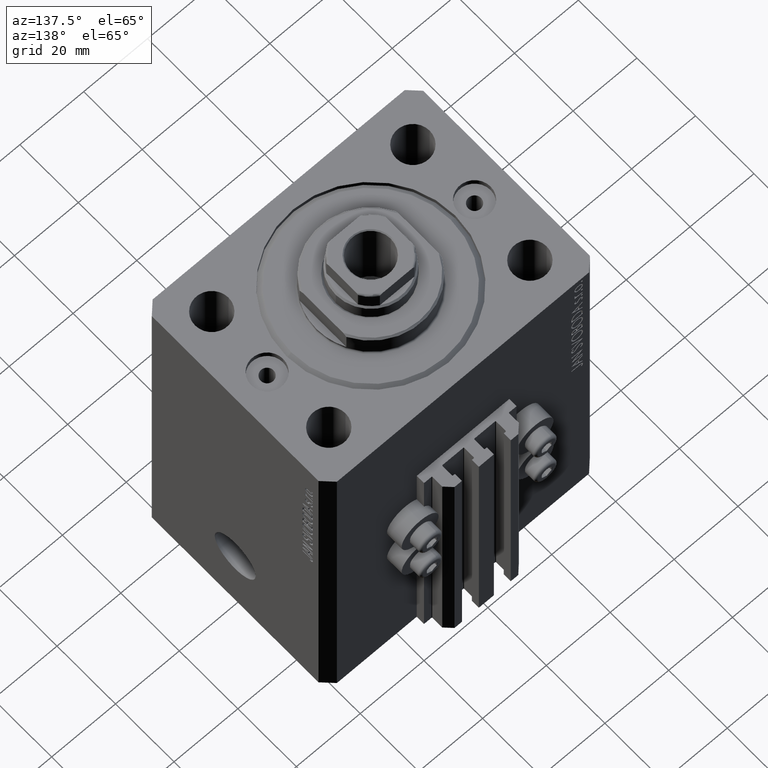
[diagram: clean part render]
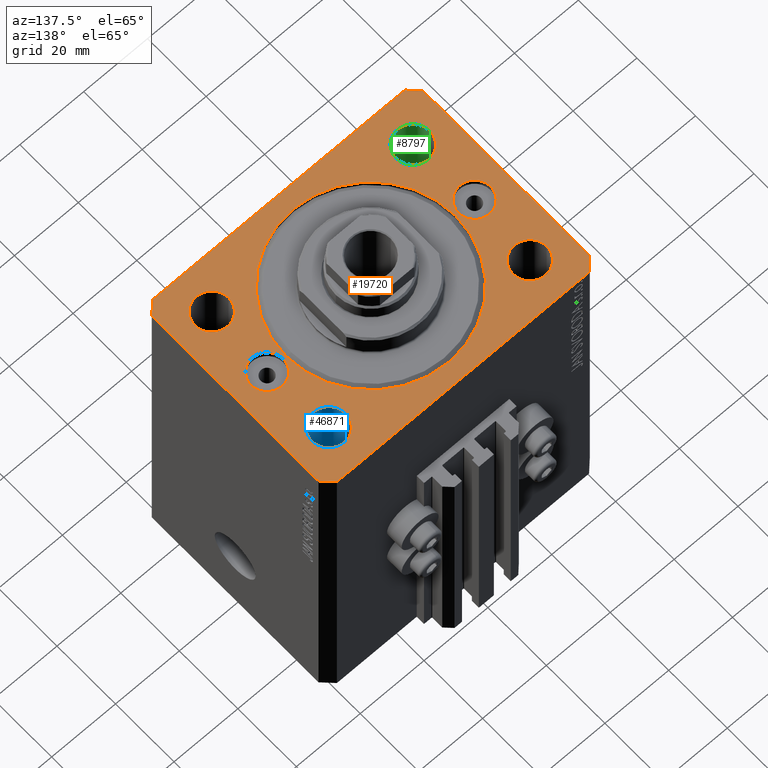
[diagram: same view with three faces highlighted in distinct colors, each labeled with its STEP entity id]
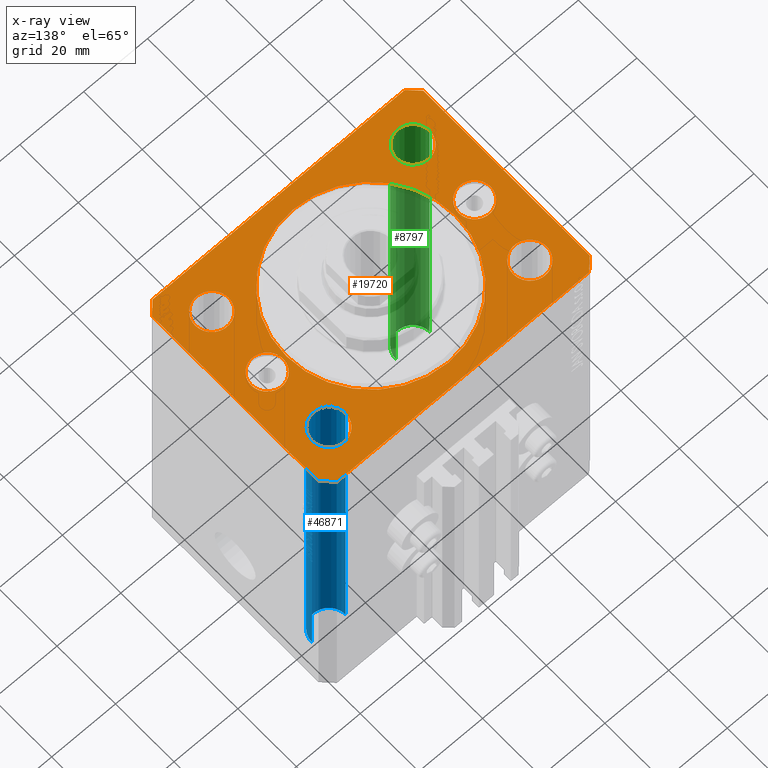
[diagram: x-ray of the same camera — body ghosted, the three highlighted faces saturated]
A machine part, auxiliary view with three faces highlighted in distinct colors.
The next image is the same camera in x-ray (body ghosted, the three faces saturated) — at least one of them is partly hidden behind the body in this view.
Their STEP definitions:

[orange] entity #19720 — the highlighted planar face has unit normal (0, 0, 1).
#109 = DIRECTION ( 'NONE',  ( 1.000000000000000000, 0.000000000000000000, 0.000000000000000000 ) ) ;
#276 = AXIS2_PLACEMENT_3D ( 'NONE', #23232, #34217, #15344 ) ;
#693 = EDGE_CURVE ( 'NONE', #46442, #35018, #13587, .T. ) ;
#1014 = DIRECTION ( 'NONE',  ( -0.7071067811865356934, 0.7071067811865594521, 0.000000000000000000 ) ) ;
#1094 = FACE_BOUND ( 'NONE', #40744, .T. ) ;
#1325 = VERTEX_POINT ( 'NONE', #14416 ) ;
#1374 = DIRECTION ( 'NONE',  ( 1.000000000000000000, 0.000000000000000000, 0.000000000000000000 ) ) ;
#1429 = CARTESIAN_POINT ( 'NONE',  ( -39.50000000000000711, -31.50000000000000000, 0.000000000000000000 ) ) ;
#1502 = ORIENTED_EDGE ( 'NONE', *, *, #40496, .T. ) ;
#1551 = FACE_OUTER_BOUND ( 'NONE', #41344, .T. ) ;
#1627 = VERTEX_POINT ( 'NONE', #17248 ) ;
#2237 = CARTESIAN_POINT ( 'NONE',  ( -31.49999999999999289, -20.00000000000000355, 0.000000000000000000 ) ) ;
#2597 = CARTESIAN_POINT ( 'NONE',  ( 36.74999999999999289, -20.00000000000000355, 0.000000000000000000 ) ) ;
#3359 = VECTOR ( 'NONE', #31037, 1000.000000000000000 ) ;
#3624 = CARTESIAN_POINT ( 'NONE',  ( -42.50000000000000000, -28.50000000000000000, 0.000000000000000000 ) ) ;
#3695 = VERTEX_POINT ( 'NONE', #19771 ) ;
#3826 = DIRECTION ( 'NONE',  ( 0.000000000000000000, 0.000000000000000000, 1.000000000000000000 ) ) ;
#4094 = CIRCLE ( 'NONE', #276, 5.249999999999997335 ) ;
#4314 = ORIENTED_EDGE ( 'NONE', *, *, #14293, .F. ) ;
#4451 = DIRECTION ( 'NONE',  ( 0.000000000000000000, 0.000000000000000000, 1.000000000000000000 ) ) ;
#5074 = CARTESIAN_POINT ( 'NONE',  ( 26.25000000000000355, 19.99999999999999289, 0.000000000000000000 ) ) ;
#5400 = VECTOR ( 'NONE', #46542, 1000.000000000000000 ) ;
#5422 = CARTESIAN_POINT ( 'NONE',  ( -36.75000000000000000, 19.99999999999999645, 0.000000000000000000 ) ) ;
#5449 = DIRECTION ( 'NONE',  ( 1.000000000000000000, 0.000000000000000000, 0.000000000000000000 ) ) ;
#5566 = ORIENTED_EDGE ( 'NONE', *, *, #20287, .T. ) ;
#6174 = VERTEX_POINT ( 'NONE', #2597 ) ;
#6617 = AXIS2_PLACEMENT_3D ( 'NONE', #43726, #10988, #25582 ) ;
#6925 = AXIS2_PLACEMENT_3D ( 'NONE', #34598, #15967, #5449 ) ;
#6988 = DIRECTION ( 'NONE',  ( 0.000000000000000000, -1.000000000000000000, 0.000000000000000000 ) ) ;
#8249 = DIRECTION ( 'NONE',  ( -0.7071067811865471286, -0.7071067811865479058, 0.000000000000000000 ) ) ;
#8615 = DIRECTION ( 'NONE',  ( 1.000000000000000000, 0.000000000000000000, 0.000000000000000000 ) ) ;
#8707 = DIRECTION ( 'NONE',  ( 1.000000000000000000, 0.000000000000000000, 0.000000000000000000 ) ) ;
#8794 = DIRECTION ( 'NONE',  ( 1.000000000000000000, 0.000000000000000000, 0.000000000000000000 ) ) ;
#9576 = CIRCLE ( 'NONE', #17980, 5.250000000000000888 ) ;
#9760 = EDGE_CURVE ( 'NONE', #1627, #30281, #19648, .T. ) ;
#9792 = EDGE_CURVE ( 'NONE', #6174, #28583, #4094, .T. ) ;
#10448 = VERTEX_POINT ( 'NONE', #5422 ) ;
#10507 = AXIS2_PLACEMENT_3D ( 'NONE', #41124, #27270, #37778 ) ;
#10755 = EDGE_LOOP ( 'NONE', ( #38485, #39964 ) ) ;
#10787 = CARTESIAN_POINT ( 'NONE',  ( -42.50000000000000000, 28.50000000000000000, 0.000000000000000000 ) ) ;
#10988 = DIRECTION ( 'NONE',  ( 0.000000000000000000, 0.000000000000000000, 1.000000000000000000 ) ) ;
#11076 = DIRECTION ( 'NONE',  ( 0.000000000000000000, 0.000000000000000000, 1.000000000000000000 ) ) ;
#11808 = VECTOR ( 'NONE', #40014, 1000.000000000000000 ) ;
#12481 = DIRECTION ( 'NONE',  ( 0.000000000000000000, 0.000000000000000000, 1.000000000000000000 ) ) ;
#12498 = EDGE_CURVE ( 'NONE', #16978, #21222, #46084, .T. ) ;
#12582 = CARTESIAN_POINT ( 'NONE',  ( 36.75000000000000000, 19.99999999999999289, 0.000000000000000000 ) ) ;
#13405 = ORIENTED_EDGE ( 'NONE', *, *, #17161, .F. ) ;
#13447 = VERTEX_POINT ( 'NONE', #17687 ) ;
#13457 = VERTEX_POINT ( 'NONE', #32724 ) ;
#13587 = CIRCLE ( 'NONE', #10507, 5.000000000000000888 ) ;
#13686 = EDGE_CURVE ( 'NONE', #29611, #40072, #44318, .T. ) ;
#13810 = CARTESIAN_POINT ( 'NONE',  ( -31.49999999999999289, -20.00000000000000355, 0.000000000000000000 ) ) ;
#14293 = EDGE_CURVE ( 'NONE', #23340, #13457, #9576, .T. ) ;
#14416 = CARTESIAN_POINT ( 'NONE',  ( 42.50000000000000711, -28.50000000000000355, 0.000000000000000000 ) ) ;
#14519 = CARTESIAN_POINT ( 'NONE',  ( 26.24999999999999645, -20.00000000000000355, 0.000000000000000000 ) ) ;
#14618 = ORIENTED_EDGE ( 'NONE', *, *, #45655, .F. ) ;
#14765 = CARTESIAN_POINT ( 'NONE',  ( -26.24999999999999289, -20.00000000000000355, 0.000000000000000000 ) ) ;
#15193 = FACE_BOUND ( 'NONE', #44868, .T. ) ;
#15344 = DIRECTION ( 'NONE',  ( 1.000000000000000000, 0.000000000000000000, 0.000000000000000000 ) ) ;
#15660 = FACE_BOUND ( 'NONE', #10755, .T. ) ;
#15967 = DIRECTION ( 'NONE',  ( 0.000000000000000000, 0.000000000000000000, 1.000000000000000000 ) ) ;
#16356 = ORIENTED_EDGE ( 'NONE', *, *, #43128, .T. ) ;
#16865 = AXIS2_PLACEMENT_3D ( 'NONE', #18500, #11076, #44048 ) ;
#16978 = VERTEX_POINT ( 'NONE', #42303 ) ;
#17161 = EDGE_CURVE ( 'NONE', #35018, #46442, #35603, .T. ) ;
#17248 = CARTESIAN_POINT ( 'NONE',  ( 42.50000000000051870, 28.49999999999995381, 0.000000000000000000 ) ) ;
#17308 = ORIENTED_EDGE ( 'NONE', *, *, #32853, .T. ) ;
#17468 = ORIENTED_EDGE ( 'NONE', *, *, #693, .F. ) ;
#17679 = ORIENTED_EDGE ( 'NONE', *, *, #44807, .T. ) ;
#17687 = CARTESIAN_POINT ( 'NONE',  ( 39.50000000000000711, -31.50000000000000000, 0.000000000000000000 ) ) ;
#17980 = AXIS2_PLACEMENT_3D ( 'NONE', #13810, #21692, #46744 ) ;
#18198 = LINE ( 'NONE', #3624, #28566 ) ;
#18385 = AXIS2_PLACEMENT_3D ( 'NONE', #40675, #32827, #109 ) ;
#18407 = DIRECTION ( 'NONE',  ( 1.000000000000000000, 0.000000000000000000, 0.000000000000000000 ) ) ;
#18500 = CARTESIAN_POINT ( 'NONE',  ( 31.50000000000000000, 19.99999999999999289, 0.000000000000000000 ) ) ;
#18572 = LINE ( 'NONE', #25034, #22265 ) ;
#18692 = CARTESIAN_POINT ( 'NONE',  ( 27.50000000000000355, 6.123233995736762338E-16, 0.000000000000000000 ) ) ;
#19029 = DIRECTION ( 'NONE',  ( 1.000000000000000000, 0.000000000000000000, -0.000000000000000000 ) ) ;
#19195 = DIRECTION ( 'NONE',  ( 1.000000000000000000, 0.000000000000000000, 0.000000000000000000 ) ) ;
#19648 = LINE ( 'NONE', #41356, #22398 ) ;
#19675 = AXIS2_PLACEMENT_3D ( 'NONE', #37857, #4451, #19029 ) ;
#19720 = ADVANCED_FACE ( 'NONE', ( #1551, #1094, #45259, #23535, #38090, #15660, #15193, #29778 ), #37170, .T. ) ;
#19771 = CARTESIAN_POINT ( 'NONE',  ( 26.50000000000000355, 0.000000000000000000, 0.000000000000000000 ) ) ;
#19969 = EDGE_LOOP ( 'NONE', ( #4314, #23165 ) ) ;
#20160 = VERTEX_POINT ( 'NONE', #43758 ) ;
#20287 = EDGE_CURVE ( 'NONE', #21919, #45371, #32539, .T. ) ;
#21222 = VERTEX_POINT ( 'NONE', #18692 ) ;
#21692 = DIRECTION ( 'NONE',  ( 0.000000000000000000, 0.000000000000000000, 1.000000000000000000 ) ) ;
#21750 = AXIS2_PLACEMENT_3D ( 'NONE', #2237, #34509, #8707 ) ;
#21879 = DIRECTION ( 'NONE',  ( 1.000000000000000000, 0.000000000000000000, 0.000000000000000000 ) ) ;
#21914 = CARTESIAN_POINT ( 'NONE',  ( -37.50000000000000000, 6.123233995736768255E-16, 0.000000000000000000 ) ) ;
#21919 = VERTEX_POINT ( 'NONE', #34196 ) ;
#22265 = VECTOR ( 'NONE', #32672, 1000.000000000000000 ) ;
#22352 = LINE ( 'NONE', #29517, #43463 ) ;
#22398 = VECTOR ( 'NONE', #1014, 1000.000000000000114 ) ;
#22574 = CARTESIAN_POINT ( 'NONE',  ( 31.49999999999999289, -20.00000000000000355, 0.000000000000000000 ) ) ;
#23165 = ORIENTED_EDGE ( 'NONE', *, *, #43212, .F. ) ;
#23232 = CARTESIAN_POINT ( 'NONE',  ( 31.49999999999999289, -20.00000000000000355, 0.000000000000000000 ) ) ;
#23340 = VERTEX_POINT ( 'NONE', #14765 ) ;
#23535 = FACE_BOUND ( 'NONE', #28072, .T. ) ;
#23586 = DIRECTION ( 'NONE',  ( 0.000000000000000000, 0.000000000000000000, 1.000000000000000000 ) ) ;
#23670 = ORIENTED_EDGE ( 'NONE', *, *, #42275, .F. ) ;
#23823 = CARTESIAN_POINT ( 'NONE',  ( 39.50000000000056843, 31.50000000000000000, 0.000000000000000000 ) ) ;
#23848 = ORIENTED_EDGE ( 'NONE', *, *, #13686, .F. ) ;
#24817 = ORIENTED_EDGE ( 'NONE', *, *, #30583, .T. ) ;
#25034 = CARTESIAN_POINT ( 'NONE',  ( 42.50000000000000711, -28.50000000000000355, 0.000000000000000000 ) ) ;
#25560 = ORIENTED_EDGE ( 'NONE', *, *, #34271, .T. ) ;
#25582 = DIRECTION ( 'NONE',  ( 1.000000000000000000, 0.000000000000000000, 0.000000000000000000 ) ) ;
#25737 = ORIENTED_EDGE ( 'NONE', *, *, #33240, .F. ) ;
#25837 = DIRECTION ( 'NONE',  ( 0.7071067811865471286, -0.7071067811865479058, 0.000000000000000000 ) ) ;
#27189 = DIRECTION ( 'NONE',  ( 0.000000000000000000, 0.000000000000000000, 1.000000000000000000 ) ) ;
#27270 = DIRECTION ( 'NONE',  ( 0.000000000000000000, 0.000000000000000000, 1.000000000000000000 ) ) ;
#27503 = CIRCLE ( 'NONE', #43498, 26.50000000000000355 ) ;
#27732 = CIRCLE ( 'NONE', #21750, 5.250000000000000888 ) ;
#27824 = EDGE_LOOP ( 'NONE', ( #23848, #28060 ) ) ;
#28060 = ORIENTED_EDGE ( 'NONE', *, *, #32820, .F. ) ;
#28072 = EDGE_LOOP ( 'NONE', ( #37934, #23670 ) ) ;
#28566 = VECTOR ( 'NONE', #25837, 1000.000000000000000 ) ;
#28583 = VERTEX_POINT ( 'NONE', #14519 ) ;
#28589 = CARTESIAN_POINT ( 'NONE',  ( 39.50000000000056843, 31.50000000000000000, 0.000000000000000000 ) ) ;
#29517 = CARTESIAN_POINT ( 'NONE',  ( -39.50000000000000711, 31.50000000000000000, 0.000000000000000000 ) ) ;
#29611 = VERTEX_POINT ( 'NONE', #12582 ) ;
#29778 = FACE_BOUND ( 'NONE', #37409, .T. ) ;
#30281 = VERTEX_POINT ( 'NONE', #23823 ) ;
#30583 = EDGE_CURVE ( 'NONE', #31028, #21919, #22352, .T. ) ;
#30726 = CARTESIAN_POINT ( 'NONE',  ( -27.50000000000000000, 0.000000000000000000, 0.000000000000000000 ) ) ;
#30817 = CARTESIAN_POINT ( 'NONE',  ( 32.50000000000000000, 0.000000000000000000, 0.000000000000000000 ) ) ;
#30983 = CARTESIAN_POINT ( 'NONE',  ( 0.000000000000000000, 0.000000000000000000, 0.000000000000000000 ) ) ;
#31028 = VERTEX_POINT ( 'NONE', #34926 ) ;
#31037 = DIRECTION ( 'NONE',  ( 1.000000000000000000, 0.000000000000000000, 0.000000000000000000 ) ) ;
#31556 = EDGE_CURVE ( 'NONE', #3695, #32267, #27503, .T. ) ;
#31749 = CIRCLE ( 'NONE', #43160, 5.250000000000000888 ) ;
#32163 = EDGE_CURVE ( 'NONE', #13447, #1325, #35819, .T. ) ;
#32267 = VERTEX_POINT ( 'NONE', #33652 ) ;
#32539 = LINE ( 'NONE', #10787, #40994 ) ;
#32672 = DIRECTION ( 'NONE',  ( 8.886653596232072440E-15, 1.000000000000000000, 0.000000000000000000 ) ) ;
#32724 = CARTESIAN_POINT ( 'NONE',  ( -36.74999999999999289, -20.00000000000000355, 0.000000000000000000 ) ) ;
#32820 = EDGE_CURVE ( 'NONE', #40072, #29611, #41223, .T. ) ;
#32827 = DIRECTION ( 'NONE',  ( 0.000000000000000000, -0.000000000000000000, -1.000000000000000000 ) ) ;
#32853 = EDGE_CURVE ( 'NONE', #21222, #16978, #35153, .T. ) ;
#33240 = EDGE_CURVE ( 'NONE', #10448, #20160, #44350, .T. ) ;
#33490 = ORIENTED_EDGE ( 'NONE', *, *, #9760, .T. ) ;
#33652 = CARTESIAN_POINT ( 'NONE',  ( -26.50000000000000355, 3.245314017740486554E-15, 0.000000000000000000 ) ) ;
#33769 = CARTESIAN_POINT ( 'NONE',  ( -31.50000000000000000, 19.99999999999999645, 0.000000000000000000 ) ) ;
#34196 = CARTESIAN_POINT ( 'NONE',  ( -42.50000000000000000, 28.50000000000000000, 0.000000000000000000 ) ) ;
#34217 = DIRECTION ( 'NONE',  ( 0.000000000000000000, 0.000000000000000000, 1.000000000000000000 ) ) ;
#34271 = EDGE_CURVE ( 'NONE', #1325, #1627, #18572, .T. ) ;
#34509 = DIRECTION ( 'NONE',  ( 0.000000000000000000, 0.000000000000000000, 1.000000000000000000 ) ) ;
#34598 = CARTESIAN_POINT ( 'NONE',  ( 31.50000000000000000, 19.99999999999999289, 0.000000000000000000 ) ) ;
#34926 = CARTESIAN_POINT ( 'NONE',  ( -39.50000000000000711, 31.50000000000000000, 0.000000000000000000 ) ) ;
#35018 = VERTEX_POINT ( 'NONE', #30726 ) ;
#35153 = CIRCLE ( 'NONE', #18385, 4.999999999999997335 ) ;
#35513 = LINE ( 'NONE', #28589, #11808 ) ;
#35603 = CIRCLE ( 'NONE', #6617, 5.000000000000000888 ) ;
#35819 = LINE ( 'NONE', #43214, #5400 ) ;
#37170 = PLANE ( 'NONE',  #19675 ) ;
#37409 = EDGE_LOOP ( 'NONE', ( #37903, #17308 ) ) ;
#37778 = DIRECTION ( 'NONE',  ( 1.000000000000000000, 0.000000000000000000, 0.000000000000000000 ) ) ;
#37857 = CARTESIAN_POINT ( 'NONE',  ( 0.000000000000000000, 0.000000000000000000, 0.000000000000000000 ) ) ;
#37903 = ORIENTED_EDGE ( 'NONE', *, *, #12498, .T. ) ;
#37934 = ORIENTED_EDGE ( 'NONE', *, *, #9792, .F. ) ;
#37970 = AXIS2_PLACEMENT_3D ( 'NONE', #30817, #41552, #8615 ) ;
#38090 = FACE_BOUND ( 'NONE', #19969, .T. ) ;
#38113 = CARTESIAN_POINT ( 'NONE',  ( -39.50000000000000711, -31.50000000000000000, 0.000000000000000000 ) ) ;
#38485 = ORIENTED_EDGE ( 'NONE', *, *, #31556, .F. ) ;
#39924 = AXIS2_PLACEMENT_3D ( 'NONE', #22574, #44077, #21879 ) ;
#39964 = ORIENTED_EDGE ( 'NONE', *, *, #41660, .F. ) ;
#40014 = DIRECTION ( 'NONE',  ( -1.000000000000000000, 0.000000000000000000, 0.000000000000000000 ) ) ;
#40072 = VERTEX_POINT ( 'NONE', #5074 ) ;
#40112 = CARTESIAN_POINT ( 'NONE',  ( 0.000000000000000000, 0.000000000000000000, 0.000000000000000000 ) ) ;
#40496 = EDGE_CURVE ( 'NONE', #43880, #13447, #42018, .T. ) ;
#40675 = CARTESIAN_POINT ( 'NONE',  ( 32.50000000000000000, 0.000000000000000000, 0.000000000000000000 ) ) ;
#40743 = AXIS2_PLACEMENT_3D ( 'NONE', #40112, #3826, #18407 ) ;
#40744 = EDGE_LOOP ( 'NONE', ( #14618, #25737 ) ) ;
#40994 = VECTOR ( 'NONE', #6988, 1000.000000000000000 ) ;
#41124 = CARTESIAN_POINT ( 'NONE',  ( -32.50000000000000000, 0.000000000000000000, 0.000000000000000000 ) ) ;
#41223 = CIRCLE ( 'NONE', #16865, 5.249999999999997335 ) ;
#41278 = ORIENTED_EDGE ( 'NONE', *, *, #32163, .T. ) ;
#41344 = EDGE_LOOP ( 'NONE', ( #16356, #24817, #5566, #17679, #1502, #41278, #25560, #33490 ) ) ;
#41356 = CARTESIAN_POINT ( 'NONE',  ( 42.50000000000051870, 28.49999999999995381, 0.000000000000000000 ) ) ;
#41519 = CIRCLE ( 'NONE', #40743, 26.50000000000000355 ) ;
#41552 = DIRECTION ( 'NONE',  ( 0.000000000000000000, -0.000000000000000000, -1.000000000000000000 ) ) ;
#41660 = EDGE_CURVE ( 'NONE', #32267, #3695, #41519, .T. ) ;
#42018 = LINE ( 'NONE', #1429, #3359 ) ;
#42046 = AXIS2_PLACEMENT_3D ( 'NONE', #45097, #27189, #8794 ) ;
#42275 = EDGE_CURVE ( 'NONE', #28583, #6174, #46877, .T. ) ;
#42303 = CARTESIAN_POINT ( 'NONE',  ( 37.50000000000000000, 0.000000000000000000, 0.000000000000000000 ) ) ;
#43128 = EDGE_CURVE ( 'NONE', #30281, #31028, #35513, .T. ) ;
#43160 = AXIS2_PLACEMENT_3D ( 'NONE', #33769, #12481, #19195 ) ;
#43212 = EDGE_CURVE ( 'NONE', #13457, #23340, #27732, .T. ) ;
#43214 = CARTESIAN_POINT ( 'NONE',  ( 39.50000000000000711, -31.50000000000000000, 0.000000000000000000 ) ) ;
#43463 = VECTOR ( 'NONE', #8249, 1000.000000000000000 ) ;
#43498 = AXIS2_PLACEMENT_3D ( 'NONE', #30983, #23586, #1374 ) ;
#43726 = CARTESIAN_POINT ( 'NONE',  ( -32.50000000000000000, 0.000000000000000000, 0.000000000000000000 ) ) ;
#43758 = CARTESIAN_POINT ( 'NONE',  ( -26.25000000000000000, 19.99999999999999645, 0.000000000000000000 ) ) ;
#43880 = VERTEX_POINT ( 'NONE', #38113 ) ;
#44048 = DIRECTION ( 'NONE',  ( 1.000000000000000000, 0.000000000000000000, 0.000000000000000000 ) ) ;
#44077 = DIRECTION ( 'NONE',  ( 0.000000000000000000, 0.000000000000000000, 1.000000000000000000 ) ) ;
#44156 = CARTESIAN_POINT ( 'NONE',  ( -42.50000000000000000, -28.50000000000000000, 0.000000000000000000 ) ) ;
#44318 = CIRCLE ( 'NONE', #6925, 5.249999999999997335 ) ;
#44350 = CIRCLE ( 'NONE', #42046, 5.250000000000000888 ) ;
#44807 = EDGE_CURVE ( 'NONE', #45371, #43880, #18198, .T. ) ;
#44868 = EDGE_LOOP ( 'NONE', ( #13405, #17468 ) ) ;
#45097 = CARTESIAN_POINT ( 'NONE',  ( -31.50000000000000000, 19.99999999999999645, 0.000000000000000000 ) ) ;
#45259 = FACE_BOUND ( 'NONE', #27824, .T. ) ;
#45371 = VERTEX_POINT ( 'NONE', #44156 ) ;
#45655 = EDGE_CURVE ( 'NONE', #20160, #10448, #31749, .T. ) ;
#46084 = CIRCLE ( 'NONE', #37970, 4.999999999999997335 ) ;
#46442 = VERTEX_POINT ( 'NONE', #21914 ) ;
#46542 = DIRECTION ( 'NONE',  ( 0.7071067811865483499, 0.7071067811865466846, 0.000000000000000000 ) ) ;
#46744 = DIRECTION ( 'NONE',  ( 1.000000000000000000, 0.000000000000000000, 0.000000000000000000 ) ) ;
#46877 = CIRCLE ( 'NONE', #39924, 5.249999999999997335 ) ;

[blue] entity #46871 — the highlighted cylindrical surface (edge-blend (fillet) strip) has radius 5.25 mm, axis along (0, 0, 1).
#1763 = LINE ( 'NONE', #2002, #36366 ) ;
#2002 = CARTESIAN_POINT ( 'NONE',  ( 36.75000000000000000, 19.99999999999999289, -124.8492424049175042 ) ) ;
#2994 = VECTOR ( 'NONE', #7796, 1000.000000000000000 ) ;
#3498 = CARTESIAN_POINT ( 'NONE',  ( 26.25000000000000355, 19.99999999999999289, -124.8492424049175042 ) ) ;
#5074 = CARTESIAN_POINT ( 'NONE',  ( 26.25000000000000355, 19.99999999999999289, 0.000000000000000000 ) ) ;
#5413 = AXIS2_PLACEMENT_3D ( 'NONE', #14092, #28908, #10729 ) ;
#6588 = EDGE_CURVE ( 'NONE', #37209, #29611, #1763, .T. ) ;
#7796 = DIRECTION ( 'NONE',  ( -0.000000000000000000, -0.000000000000000000, 1.000000000000000000 ) ) ;
#8642 = CARTESIAN_POINT ( 'NONE',  ( 36.75000000000000000, 19.99999999999999289, -110.0000000000000000 ) ) ;
#10729 = DIRECTION ( 'NONE',  ( 1.000000000000000000, 0.000000000000000000, 0.000000000000000000 ) ) ;
#11076 = DIRECTION ( 'NONE',  ( 0.000000000000000000, 0.000000000000000000, 1.000000000000000000 ) ) ;
#12582 = CARTESIAN_POINT ( 'NONE',  ( 36.75000000000000000, 19.99999999999999289, 0.000000000000000000 ) ) ;
#13635 = EDGE_CURVE ( 'NONE', #37209, #45914, #32121, .T. ) ;
#14092 = CARTESIAN_POINT ( 'NONE',  ( 31.50000000000000000, 19.99999999999999289, -124.8492424049175042 ) ) ;
#16865 = AXIS2_PLACEMENT_3D ( 'NONE', #18500, #11076, #44048 ) ;
#18228 = EDGE_LOOP ( 'NONE', ( #30849, #26968, #24967, #29395 ) ) ;
#18396 = FACE_OUTER_BOUND ( 'NONE', #18228, .T. ) ;
#18500 = CARTESIAN_POINT ( 'NONE',  ( 31.50000000000000000, 19.99999999999999289, 0.000000000000000000 ) ) ;
#23685 = EDGE_CURVE ( 'NONE', #45914, #40072, #32873, .T. ) ;
#24967 = ORIENTED_EDGE ( 'NONE', *, *, #32820, .T. ) ;
#26968 = ORIENTED_EDGE ( 'NONE', *, *, #23685, .T. ) ;
#28908 = DIRECTION ( 'NONE',  ( -0.000000000000000000, -0.000000000000000000, 1.000000000000000000 ) ) ;
#29395 = ORIENTED_EDGE ( 'NONE', *, *, #6588, .F. ) ;
#29610 = CARTESIAN_POINT ( 'NONE',  ( 31.50000000000000000, 19.99999999999999289, -110.0000000000000000 ) ) ;
#29611 = VERTEX_POINT ( 'NONE', #12582 ) ;
#29847 = DIRECTION ( 'NONE',  ( 1.000000000000000000, 0.000000000000000000, 0.000000000000000000 ) ) ;
#30126 = CARTESIAN_POINT ( 'NONE',  ( 26.25000000000000355, 19.99999999999999289, -110.0000000000000000 ) ) ;
#30849 = ORIENTED_EDGE ( 'NONE', *, *, #13635, .T. ) ;
#31634 = DIRECTION ( 'NONE',  ( -0.000000000000000000, -0.000000000000000000, 1.000000000000000000 ) ) ;
#32121 = CIRCLE ( 'NONE', #37425, 5.249999999999997335 ) ;
#32722 = CYLINDRICAL_SURFACE ( 'NONE', #5413, 5.249999999999997335 ) ;
#32820 = EDGE_CURVE ( 'NONE', #40072, #29611, #41223, .T. ) ;
#32873 = LINE ( 'NONE', #3498, #2994 ) ;
#36366 = VECTOR ( 'NONE', #31634, 1000.000000000000000 ) ;
#37209 = VERTEX_POINT ( 'NONE', #8642 ) ;
#37425 = AXIS2_PLACEMENT_3D ( 'NONE', #29610, #40338, #29847 ) ;
#40072 = VERTEX_POINT ( 'NONE', #5074 ) ;
#40338 = DIRECTION ( 'NONE',  ( -0.000000000000000000, -0.000000000000000000, -1.000000000000000000 ) ) ;
#41223 = CIRCLE ( 'NONE', #16865, 5.249999999999997335 ) ;
#44048 = DIRECTION ( 'NONE',  ( 1.000000000000000000, 0.000000000000000000, 0.000000000000000000 ) ) ;
#45914 = VERTEX_POINT ( 'NONE', #30126 ) ;
#46871 = ADVANCED_FACE ( 'NONE', ( #18396 ), #32722, .F. ) ;

[green] entity #8797 — the highlighted cylindrical surface (edge-blend (fillet) strip) has radius 5.25 mm, axis along (0, 0, 1).
#265 = VECTOR ( 'NONE', #12352, 1000.000000000000000 ) ;
#935 = VERTEX_POINT ( 'NONE', #21768 ) ;
#2221 = CARTESIAN_POINT ( 'NONE',  ( -31.49999999999999289, -20.00000000000000355, -124.8492424049175042 ) ) ;
#2237 = CARTESIAN_POINT ( 'NONE',  ( -31.49999999999999289, -20.00000000000000355, 0.000000000000000000 ) ) ;
#8010 = CARTESIAN_POINT ( 'NONE',  ( -26.24999999999999289, -20.00000000000000355, -124.8492424049175042 ) ) ;
#8707 = DIRECTION ( 'NONE',  ( 1.000000000000000000, 0.000000000000000000, 0.000000000000000000 ) ) ;
#8797 = ADVANCED_FACE ( 'NONE', ( #12979 ), #45926, .F. ) ;
#11318 = EDGE_CURVE ( 'NONE', #35837, #935, #39972, .T. ) ;
#12127 = DIRECTION ( 'NONE',  ( -0.000000000000000000, -0.000000000000000000, -1.000000000000000000 ) ) ;
#12352 = DIRECTION ( 'NONE',  ( -0.000000000000000000, -0.000000000000000000, 1.000000000000000000 ) ) ;
#12979 = FACE_OUTER_BOUND ( 'NONE', #29946, .T. ) ;
#13414 = ORIENTED_EDGE ( 'NONE', *, *, #43212, .T. ) ;
#13457 = VERTEX_POINT ( 'NONE', #32724 ) ;
#13523 = CARTESIAN_POINT ( 'NONE',  ( -26.24999999999999289, -20.00000000000000355, -110.0000000000000000 ) ) ;
#14765 = CARTESIAN_POINT ( 'NONE',  ( -26.24999999999999289, -20.00000000000000355, 0.000000000000000000 ) ) ;
#17042 = DIRECTION ( 'NONE',  ( -0.000000000000000000, -0.000000000000000000, 1.000000000000000000 ) ) ;
#20405 = DIRECTION ( 'NONE',  ( 1.000000000000000000, 0.000000000000000000, 0.000000000000000000 ) ) ;
#21750 = AXIS2_PLACEMENT_3D ( 'NONE', #2237, #34509, #8707 ) ;
#21768 = CARTESIAN_POINT ( 'NONE',  ( -36.74999999999999289, -20.00000000000000355, -110.0000000000000000 ) ) ;
#22407 = LINE ( 'NONE', #45064, #265 ) ;
#23340 = VERTEX_POINT ( 'NONE', #14765 ) ;
#24253 = ORIENTED_EDGE ( 'NONE', *, *, #38753, .F. ) ;
#25969 = ORIENTED_EDGE ( 'NONE', *, *, #11318, .T. ) ;
#27732 = CIRCLE ( 'NONE', #21750, 5.250000000000000888 ) ;
#28498 = VECTOR ( 'NONE', #33090, 1000.000000000000000 ) ;
#29946 = EDGE_LOOP ( 'NONE', ( #25969, #36511, #13414, #24253 ) ) ;
#30291 = CARTESIAN_POINT ( 'NONE',  ( -31.49999999999999289, -20.00000000000000355, -110.0000000000000000 ) ) ;
#31607 = AXIS2_PLACEMENT_3D ( 'NONE', #30291, #12127, #40319 ) ;
#32724 = CARTESIAN_POINT ( 'NONE',  ( -36.74999999999999289, -20.00000000000000355, 0.000000000000000000 ) ) ;
#33090 = DIRECTION ( 'NONE',  ( -0.000000000000000000, -0.000000000000000000, 1.000000000000000000 ) ) ;
#33328 = AXIS2_PLACEMENT_3D ( 'NONE', #2221, #17042, #20405 ) ;
#34509 = DIRECTION ( 'NONE',  ( 0.000000000000000000, 0.000000000000000000, 1.000000000000000000 ) ) ;
#35837 = VERTEX_POINT ( 'NONE', #13523 ) ;
#36511 = ORIENTED_EDGE ( 'NONE', *, *, #37699, .T. ) ;
#37699 = EDGE_CURVE ( 'NONE', #935, #13457, #22407, .T. ) ;
#38753 = EDGE_CURVE ( 'NONE', #35837, #23340, #44075, .T. ) ;
#39972 = CIRCLE ( 'NONE', #31607, 5.250000000000000888 ) ;
#40319 = DIRECTION ( 'NONE',  ( 1.000000000000000000, 0.000000000000000000, 0.000000000000000000 ) ) ;
#43212 = EDGE_CURVE ( 'NONE', #13457, #23340, #27732, .T. ) ;
#44075 = LINE ( 'NONE', #8010, #28498 ) ;
#45064 = CARTESIAN_POINT ( 'NONE',  ( -36.74999999999999289, -20.00000000000000355, -124.8492424049175042 ) ) ;
#45926 = CYLINDRICAL_SURFACE ( 'NONE', #33328, 5.250000000000000888 ) ;